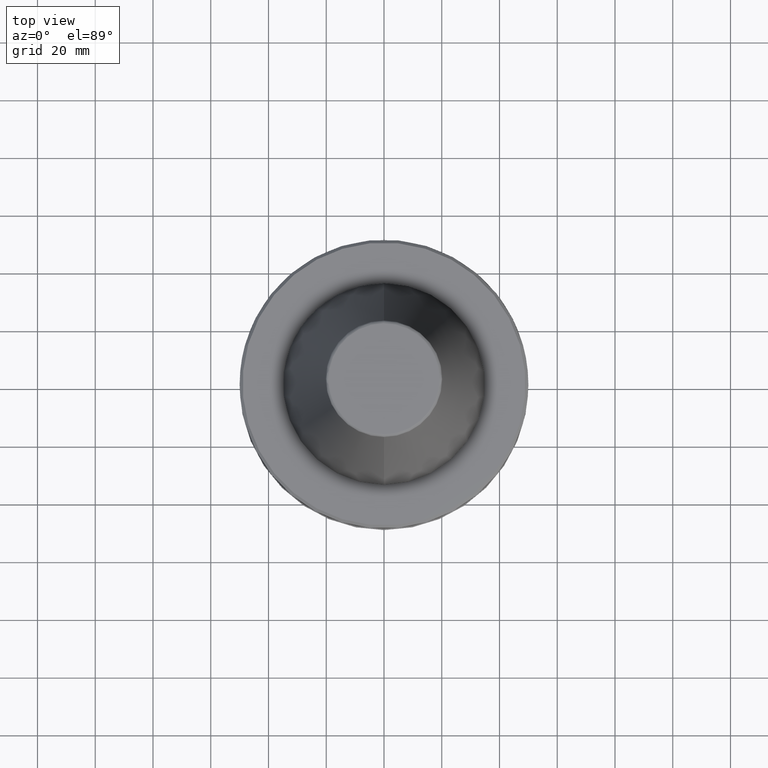
[diagram: clean part render]
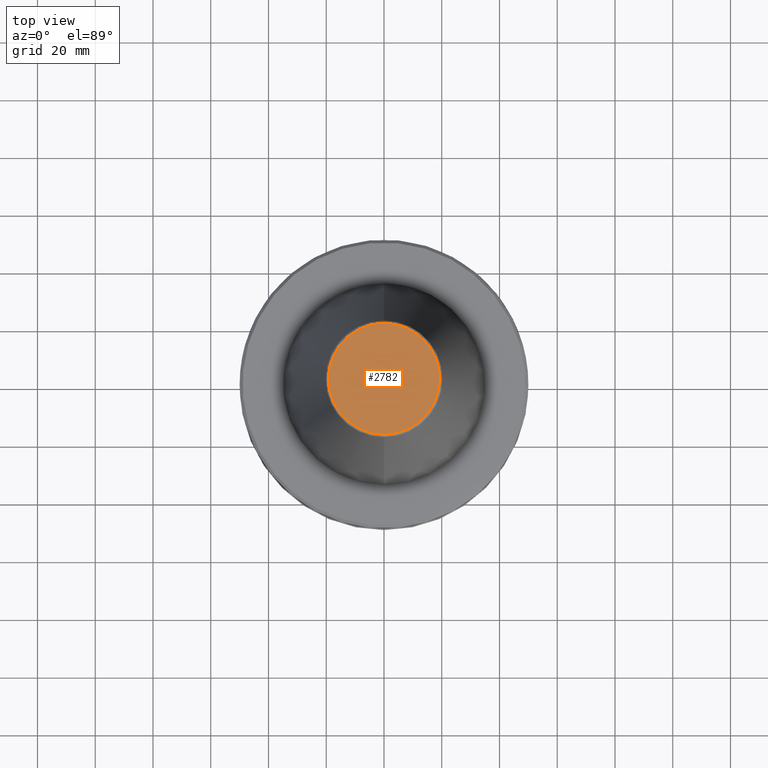
[diagram: same view with one face highlighted and labeled with its STEP entity id]
A machine part, top view. The second image highlights one B-rep face of the part: STEP entity #2782.
In plain terms, the highlighted planar face has unit normal (0, 0, 1).
Its self-contained STEP definition (entity closure, byte-faithful):
#60 = CARTESIAN_POINT ( 'NONE',  ( 19.21428326074989100, 0.0000000000000000000, 101.7999999998288800 ) ) ;
#64 = CARTESIAN_POINT ( 'NONE',  ( 19.21428326062250100, 38.42856652208890000, 101.7999999997147700 ) ) ;
#72 = VERTEX_POINT ( 'NONE', #1691 ) ;
#80 = CARTESIAN_POINT ( 'NONE',  ( -19.21428326062250100, 38.42856652208890000, 101.7999999997147700 ) ) ;
#86 = CARTESIAN_POINT ( 'NONE',  ( -19.21428326074989100, 0.0000000000000000000, 101.7999999998288800 ) ) ;
#265 =( BOUNDED_CURVE ( )  B_SPLINE_CURVE ( 3, ( #1179, #1137, #1180, #1197 ),
 .UNSPECIFIED., .F., .F. ) 
 B_SPLINE_CURVE_WITH_KNOTS ( ( 4, 4 ),
 ( 0.0000000000000000000, 1.000000000000000000 ),
 .UNSPECIFIED. ) 
 CURVE ( )  GEOMETRIC_REPRESENTATION_ITEM ( )  RATIONAL_B_SPLINE_CURVE ( ( 0.9606698271414659800, 0.3202232757138218600, 0.3202232757138218600, 0.9606698271414659800 ) ) 
 REPRESENTATION_ITEM ( '' )  );
#312 = CARTESIAN_POINT ( 'NONE',  ( -19.44485466400000500, -19.44485466400000500, 101.8000000000000000 ) ) ;
#336 = CARTESIAN_POINT ( 'NONE',  ( 19.21428326074989100, 0.0000000000000000000, 101.7999999998288800 ) ) ;
#687 = EDGE_CURVE ( 'NONE', #1033, #72, #265, .T. ) ;
#1033 = VERTEX_POINT ( 'NONE', #336 ) ;
#1092 = DIRECTION ( 'NONE',  ( 0.0000000000000000000, 0.0000000000000000000, 1.000000000000000000 ) ) ;
#1137 = CARTESIAN_POINT ( 'NONE',  ( 19.21428326062250800, -38.42856652208890700, 101.7999999997148100 ) ) ;
#1179 = CARTESIAN_POINT ( 'NONE',  ( 19.21428326074989100, 0.0000000000000000000, 101.7999999998288800 ) ) ;
#1180 = CARTESIAN_POINT ( 'NONE',  ( -19.21428326062250800, -38.42856652208890700, 101.7999999997148100 ) ) ;
#1197 = CARTESIAN_POINT ( 'NONE',  ( -19.21428326074989100, 0.0000000000000000000, 101.7999999998288800 ) ) ;
#1300 = EDGE_LOOP ( 'NONE', ( #2057, #2307 ) ) ;
#1313 = EDGE_CURVE ( 'NONE', #72, #1033, #2480, .T. ) ;
#1691 = CARTESIAN_POINT ( 'NONE',  ( -19.21428326074989100, 0.0000000000000000000, 101.7999999998288800 ) ) ;
#2004 = FACE_OUTER_BOUND ( 'NONE', #1300, .T. ) ;
#2028 = PLANE ( 'NONE',  #2206 ) ;
#2057 = ORIENTED_EDGE ( 'NONE', *, *, #1313, .F. ) ;
#2206 = AXIS2_PLACEMENT_3D ( 'NONE', #312, #1092, #2345 ) ;
#2307 = ORIENTED_EDGE ( 'NONE', *, *, #687, .F. ) ;
#2345 = DIRECTION ( 'NONE',  ( 1.000000000000000000, 0.0000000000000000000, -0.0000000000000000000 ) ) ;
#2480 =( BOUNDED_CURVE ( )  B_SPLINE_CURVE ( 3, ( #86, #80, #64, #60 ),
 .UNSPECIFIED., .F., .F. ) 
 B_SPLINE_CURVE_WITH_KNOTS ( ( 4, 4 ),
 ( 0.0000000000000000000, 1.000000000000000000 ),
 .UNSPECIFIED. ) 
 CURVE ( )  GEOMETRIC_REPRESENTATION_ITEM ( )  RATIONAL_B_SPLINE_CURVE ( ( 0.9606698271414665400, 0.3202232757138221400, 0.3202232757138221400, 0.9606698271414665400 ) ) 
 REPRESENTATION_ITEM ( '' )  );
#2782 = ADVANCED_FACE ( 'NONE', ( #2004 ), #2028, .T. ) ;